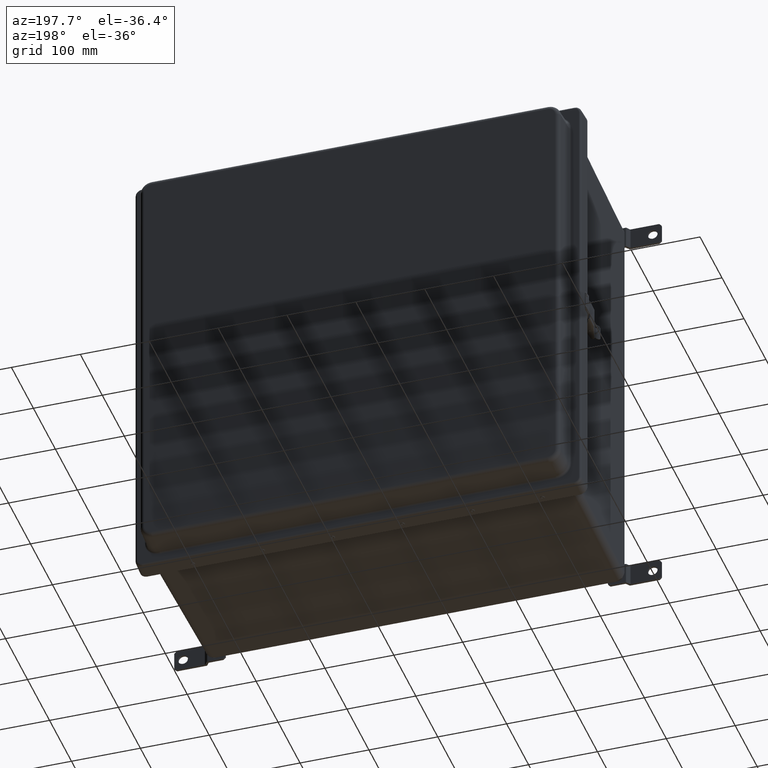
[diagram: clean part render]
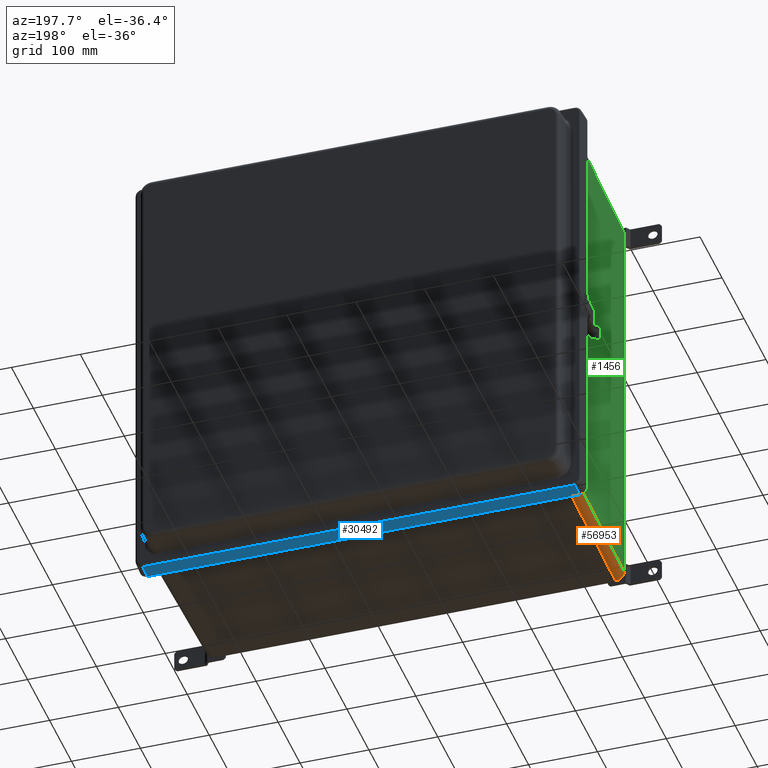
[diagram: same view with three faces highlighted in distinct colors, each labeled with its STEP entity id]
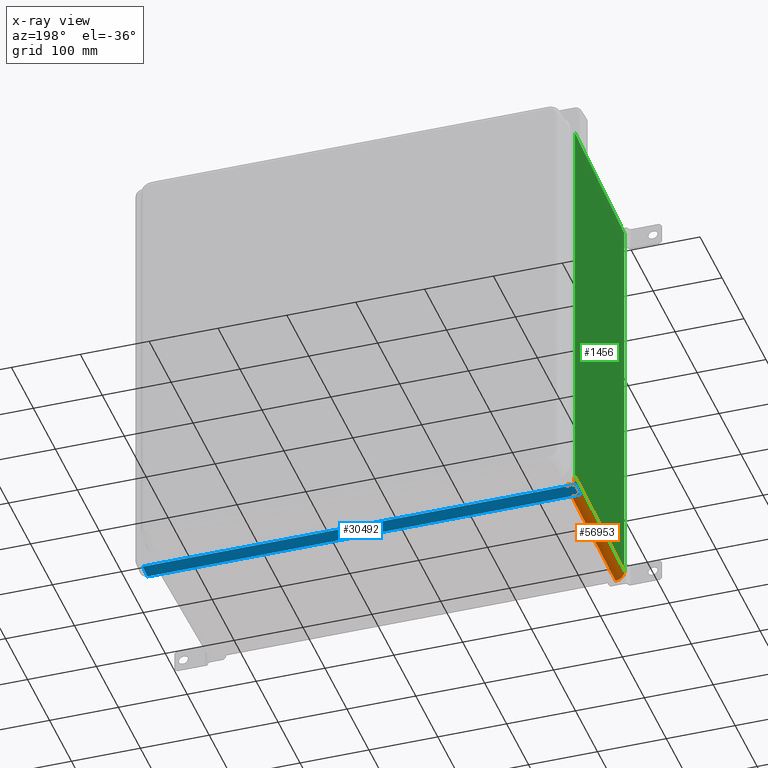
[diagram: x-ray of the same camera — body ghosted, the three highlighted faces saturated]
A machine part, auxiliary view with three faces highlighted in distinct colors.
The next image is the same camera in x-ray (body ghosted, the three faces saturated) — at least one of them is partly hidden behind the body in this view.
Their STEP definitions:

[orange] entity #56953 — the highlighted cylindrical surface (edge-blend (fillet) strip) has radius 12.7 mm, axis along (-0.0174, 0.9997, -0.0174).
#936 =( BOUNDED_CURVE ( )  B_SPLINE_CURVE ( 3, ( #1952, #31396, #11822, #46240 ),
 .UNSPECIFIED., .F., .F. ) 
 B_SPLINE_CURVE_WITH_KNOTS ( ( 4, 4 ),
 ( 5.497939437029718800, 6.283185307179586200 ),
 .UNSPECIFIED. ) 
 CURVE ( )  GEOMETRIC_REPRESENTATION_ITEM ( )  RATIONAL_B_SPLINE_CURVE ( ( 1.000000000000000000, 0.9492724465894296600, 0.9492724465894296600, 1.000000000000000000 ) ) 
 REPRESENTATION_ITEM ( '' )  );
#1618 = ORIENTED_EDGE ( 'NONE', *, *, #54825, .T. ) ;
#1690 = EDGE_CURVE ( 'NONE', #60708, #53063, #28577, .T. ) ;
#1763 = CARTESIAN_POINT ( 'NONE',  ( -11.90611046317963700, -9.881169417980761000, -11.71610649043089200 ) ) ;
#1952 = CARTESIAN_POINT ( 'NONE',  ( -11.45763122803377600, -9.879363101609323300, -11.95755507561197100 ) ) ;
#2372 = CARTESIAN_POINT ( 'NONE',  ( -11.83085558689586700, -0.5871381827173612900, -12.07306316352641700 ) ) ;
#2384 = ORIENTED_EDGE ( 'NONE', *, *, #3844, .F. ) ;
#3844 = EDGE_CURVE ( 'NONE', #9232, #44949, #45667, .T. ) ;
#4033 = CARTESIAN_POINT ( 'NONE',  ( -12.08469487838327100, -0.4943172800457236700, -11.80941849839688600 ) ) ;
#4247 = CARTESIAN_POINT ( 'NONE',  ( -12.00745191115025900, -0.7136056890291355700, -11.93089852931318300 ) ) ;
#4344 = CARTESIAN_POINT ( 'NONE',  ( -12.13015222368495000, 0.008720889070032987100, -11.63022837610675400 ) ) ;
#4996 = CARTESIAN_POINT ( 'NONE',  ( -12.12134862575777200, -0.4956368983906792000, -11.62142477817957500 ) ) ;
#6424 = CARTESIAN_POINT ( 'NONE',  ( -11.45763122803377600, -9.879363101609323300, -11.95755507561197100 ) ) ;
#7307 = CARTESIAN_POINT ( 'NONE',  ( -11.81904622595997100, -0.5481778721213216300, -12.07933790350403800 ) ) ;
#8953 = CARTESIAN_POINT ( 'NONE',  ( -12.07935121875329500, -0.5480729291304276000, -11.81902133962429800 ) ) ;
#9179 = CARTESIAN_POINT ( 'NONE',  ( -11.98081675446124100, -0.7227210485881894200, -11.96112282100824100 ) ) ;
#9232 = VERTEX_POINT ( 'NONE', #16410 ) ;
#9419 = ORIENTED_EDGE ( 'NONE', *, *, #14010, .T. ) ;
#9764 = CARTESIAN_POINT ( 'NONE',  ( -11.97096978773470800, -0.7227210485881902000, -11.97096978773477000 ) ) ;
#11822 = CARTESIAN_POINT ( 'NONE',  ( -11.71610649043089200, -9.881169417980761000, -11.90611046317963700 ) ) ;
#11877 =( BOUNDED_CURVE ( )  B_SPLINE_CURVE ( 3, ( #4996, #19605, #44347, #14875 ),
 .UNSPECIFIED., .F., .T. ) 
 B_SPLINE_CURVE_WITH_KNOTS ( ( 4, 4 ),
 ( 5.497939437029717900, 5.883314233597677600 ),
 .UNSPECIFIED. ) 
 CURVE ( )  GEOMETRIC_REPRESENTATION_ITEM ( )  RATIONAL_B_SPLINE_CURVE ( ( 1.000000000000000000, 0.9876621003926475700, 0.9876621003926475700, 1.000000000000000000 ) ) 
 REPRESENTATION_ITEM ( '' )  );
#12049 = CARTESIAN_POINT ( 'NONE',  ( -11.93066168542281800, -0.7135099898239115600, -12.00765162186481800 ) ) ;
#12253 = CARTESIAN_POINT ( 'NONE',  ( -11.81109350364470400, -0.5078715765017595100, -12.08368273621312900 ) ) ;
#12397 = AXIS2_PLACEMENT_3D ( 'NONE', #42828, #47777, #28224 ) ;
#13914 = CARTESIAN_POINT ( 'NONE',  ( -12.07306191587222300, -0.5871477096917526700, -11.83085795600943300 ) ) ;
#14010 = EDGE_CURVE ( 'NONE', #56091, #44949, #17138, .T. ) ;
#14875 = CARTESIAN_POINT ( 'NONE',  ( -12.08469487838327100, -0.4943172800457236700, -11.80941849839688600 ) ) ;
#16410 = CARTESIAN_POINT ( 'NONE',  ( -12.12134862575777200, -0.4956368983906792000, -11.62142477817957500 ) ) ;
#16582 = CARTESIAN_POINT ( 'NONE',  ( -11.95753461765810700, -9.880535137001352600, -11.59198432717436600 ) ) ;
#16986 = CARTESIAN_POINT ( 'NONE',  ( -11.90158792877466000, -0.6946630567834839500, -12.02981124285595800 ) ) ;
#17138 =( BOUNDED_CURVE ( )  B_SPLINE_CURVE ( 3, ( #60774, #1763, #16582, #31412 ),
 .UNSPECIFIED., .F., .F. ) 
 B_SPLINE_CURVE_WITH_KNOTS ( ( 4, 4 ),
 ( 0.0000000000000000000, 0.7852458701498674600 ),
 .UNSPECIFIED. ) 
 CURVE ( )  GEOMETRIC_REPRESENTATION_ITEM ( )  RATIONAL_B_SPLINE_CURVE ( ( 1.000000000000000000, 0.9492724465894296600, 0.9492724465894296600, 1.000000000000000000 ) ) 
 REPRESENTATION_ITEM ( '' )  );
#18831 = CARTESIAN_POINT ( 'NONE',  ( -12.06425304610514200, -0.6241424124028013300, -11.84696890504616500 ) ) ;
#19605 = CARTESIAN_POINT ( 'NONE',  ( -12.12135846694288000, -0.4950730972733387600, -11.68607427286474200 ) ) ;
#20744 = CARTESIAN_POINT ( 'NONE',  ( -11.95755507561197100, -9.879363101609323300, -11.45763122803377600 ) ) ;
#21923 = CARTESIAN_POINT ( 'NONE',  ( -11.87522543671235600, -0.6678339771598966700, -12.04747544983802100 ) ) ;
#22033 = VECTOR ( 'NONE', #30234, 39.37007874015748900 ) ;
#23114 = EDGE_CURVE ( 'NONE', #35316, #24390, #44679, .T. ) ;
#23291 = EDGE_CURVE ( 'NONE', #29156, #24390, #48193, .T. ) ;
#23538 = CARTESIAN_POINT ( 'NONE',  ( -11.74952165368535300, -0.4946277295899211300, -12.10898792464240300 ) ) ;
#23774 = CARTESIAN_POINT ( 'NONE',  ( -12.05221526881354800, -0.6577861726424736300, -11.86754455176378900 ) ) ;
#23800 = EDGE_LOOP ( 'NONE', ( #61202, #42944, #53856, #1618, #9419, #2384, #41073, #41539 ) ) ;
#24390 = VERTEX_POINT ( 'NONE', #54923 ) ;
#26551 = CARTESIAN_POINT ( 'NONE',  ( -11.80941849839678600, -0.4943172800457243900, -12.08469487838331200 ) ) ;
#26642 = CARTESIAN_POINT ( 'NONE',  ( -11.97096978773470800, -0.7227210485881902000, -11.97096978773477000 ) ) ;
#26854 = CARTESIAN_POINT ( 'NONE',  ( -11.85335241528750800, -0.6358636582741689100, -12.06064455711823100 ) ) ;
#28224 = DIRECTION ( 'NONE',  ( 0.0000000000000000000, 0.01745240643728358500, 0.9998476951563912700 ) ) ;
#28303 = CARTESIAN_POINT ( 'NONE',  ( -11.80941849839678600, -0.4943172800457243900, -12.08469487838331200 ) ) ;
#28519 = CARTESIAN_POINT ( 'NONE',  ( -11.68607427286470300, -0.4950730972733389800, -12.12135846694288000 ) ) ;
#28577 = B_SPLINE_CURVE_WITH_KNOTS ( 'NONE', 3,
 ( #4033, #33475, #62850, #8953, #43350, #13914, #48306, #18831, #53213, #23774, #58101, #28748, #63060, #33695, #4247, #38609, #9179, #43574 ),
 .UNSPECIFIED., .F., .F.,
 ( 4, 2, 2, 2, 2, 2, 2, 2, 4 ),
 ( 0.002041699445812603100, 0.003083391825584868700, 0.004125084205357134300, 0.005166776585129399500, 0.006208468964901661100, 0.007250161344673921100, 0.008291853724446181900, 0.009333546104218444500, 0.01037523848399070400 ),
 .UNSPECIFIED. ) ;
#28748 = CARTESIAN_POINT ( 'NONE',  ( -12.03607829101612700, -0.6866203354802366000, -11.89255120586995700 ) ) ;
#29156 = VERTEX_POINT ( 'NONE', #6424 ) ;
#30234 = DIRECTION ( 'NONE',  ( -0.01744974916068272100, 0.9996954598818874600, -0.01744974916068272100 ) ) ;
#30235 = EDGE_CURVE ( 'NONE', #53063, #35316, #36716, .T. ) ;
#31396 = CARTESIAN_POINT ( 'NONE',  ( -11.59198432717436600, -9.880535137001352600, -11.95753461765810500 ) ) ;
#31412 = CARTESIAN_POINT ( 'NONE',  ( -11.95755507561197100, -9.879363101609323300, -11.45763122803377600 ) ) ;
#31811 = CARTESIAN_POINT ( 'NONE',  ( -11.83569300200133000, -0.5997014925401041900, -12.07047655147165200 ) ) ;
#33475 = CARTESIAN_POINT ( 'NONE',  ( -12.08368425192733900, -0.5078512785229913900, -11.81109099527256100 ) ) ;
#33695 = CARTESIAN_POINT ( 'NONE',  ( -12.01552852566812000, -0.7081769754833586700, -11.92073813980171200 ) ) ;
#35316 = VERTEX_POINT ( 'NONE', #26551 ) ;
#36716 = B_SPLINE_CURVE_WITH_KNOTS ( 'NONE', 3,
 ( #26642, #41276, #41484, #12049, #46441, #16986, #51363, #21923, #56247, #26854, #61172, #31811, #2372, #36758, #7307, #41698, #12253, #46659 ),
 .UNSPECIFIED., .F., .F.,
 ( 4, 2, 2, 2, 2, 2, 2, 2, 4 ),
 ( 0.0000000000000000000, 0.001052571105082931500, 0.002105142210165863000, 0.003157713315248794400, 0.004210284420331725900, 0.005262855525414657400, 0.006315426630497588900, 0.007367997735580520400, 0.008420568840663451800 ),
 .UNSPECIFIED. ) ;
#36758 = CARTESIAN_POINT ( 'NONE',  ( -11.82253500422406100, -0.5613940291629184700, -12.07749299873189800 ) ) ;
#38609 = CARTESIAN_POINT ( 'NONE',  ( -11.99017456563215800, -0.7208216711914087200, -11.95099362256393100 ) ) ;
#38707 = DIRECTION ( 'NONE',  ( 0.01744974916068272100, -0.9996954598818874600, 0.01744974916068271800 ) ) ;
#40600 = CYLINDRICAL_SURFACE ( 'NONE', #12397, 0.4999999999999988900 ) ;
#41073 = ORIENTED_EDGE ( 'NONE', *, *, #59885, .T. ) ;
#41276 = CARTESIAN_POINT ( 'NONE',  ( -11.96110931606209200, -0.7227210485881916400, -11.98083025940737800 ) ) ;
#41484 = CARTESIAN_POINT ( 'NONE',  ( -11.95104795292146200, -0.7208517363652213700, -11.99013174131133600 ) ) ;
#41539 = ORIENTED_EDGE ( 'NONE', *, *, #1690, .T. ) ;
#41698 = CARTESIAN_POINT ( 'NONE',  ( -11.81331568931992800, -0.5213600045165890400, -12.08243841063246800 ) ) ;
#42828 = CARTESIAN_POINT ( 'NONE',  ( -11.63022837610675400, 0.01744709228867476900, -11.63022837610675400 ) ) ;
#42944 = ORIENTED_EDGE ( 'NONE', *, *, #23114, .T. ) ;
#43350 = CARTESIAN_POINT ( 'NONE',  ( -12.07750027384208200, -0.5613494703082286800, -11.82252131367351400 ) ) ;
#43574 = CARTESIAN_POINT ( 'NONE',  ( -11.97096978773470800, -0.7227210485881902000, -11.97096978773477000 ) ) ;
#44102 = VECTOR ( 'NONE', #38707, 39.37007874015748900 ) ;
#44347 = CARTESIAN_POINT ( 'NONE',  ( -12.10898792464238800, -0.4946277295899206300, -11.74952165368542500 ) ) ;
#44679 =( BOUNDED_CURVE ( )  B_SPLINE_CURVE ( 3, ( #28303, #23538, #28519, #62822 ),
 .UNSPECIFIED., .F., .T. ) 
 B_SPLINE_CURVE_WITH_KNOTS ( ( 4, 4 ),
 ( 0.3998710735821200400, 0.7852458701498680200 ),
 .UNSPECIFIED. ) 
 CURVE ( )  GEOMETRIC_REPRESENTATION_ITEM ( )  RATIONAL_B_SPLINE_CURVE ( ( 1.000000000000000000, 0.9876621003926611100, 0.9876621003926611100, 1.000000000000000000 ) ) 
 REPRESENTATION_ITEM ( '' )  );
#44949 = VERTEX_POINT ( 'NONE', #20744 ) ;
#45667 = LINE ( 'NONE', #4344, #44102 ) ;
#46240 = CARTESIAN_POINT ( 'NONE',  ( -11.81110847680526300, -9.881169417980761000, -11.81110847680526300 ) ) ;
#46441 = CARTESIAN_POINT ( 'NONE',  ( -11.92075929887756100, -0.7081931504239353800, -12.01551309747763200 ) ) ;
#46659 = CARTESIAN_POINT ( 'NONE',  ( -11.80941849839678600, -0.4943172800457243900, -12.08469487838331200 ) ) ;
#47777 = DIRECTION ( 'NONE',  ( -0.01744974916068272100, 0.9996954598818874600, -0.01744974916068272100 ) ) ;
#48193 = LINE ( 'NONE', #49970, #22033 ) ;
#48306 = CARTESIAN_POINT ( 'NONE',  ( -12.07047020955874700, -0.5997326393382816900, -11.83570489941300100 ) ) ;
#49970 = CARTESIAN_POINT ( 'NONE',  ( -11.63022837610675400, 0.008720889070032987100, -12.13015222368495000 ) ) ;
#51363 = CARTESIAN_POINT ( 'NONE',  ( -11.89222900930345400, -0.6863048407642052800, -12.03629647734165400 ) ) ;
#53063 = VERTEX_POINT ( 'NONE', #9764 ) ;
#53213 = CARTESIAN_POINT ( 'NONE',  ( -12.06063683009748300, -0.6358928727027481900, -11.85336664899385200 ) ) ;
#53856 = ORIENTED_EDGE ( 'NONE', *, *, #23291, .F. ) ;
#54825 = EDGE_CURVE ( 'NONE', #29156, #56091, #936, .T. ) ;
#54923 = CARTESIAN_POINT ( 'NONE',  ( -11.62142477817957500, -0.4956368983906790900, -12.12134862575777200 ) ) ;
#55152 = FACE_OUTER_BOUND ( 'NONE', #23800, .T. ) ;
#56091 = VERTEX_POINT ( 'NONE', #57962 ) ;
#56247 = CARTESIAN_POINT ( 'NONE',  ( -11.86747583558912000, -0.6576872547765839600, -12.05225680909958400 ) ) ;
#56953 = ADVANCED_FACE ( 'NONE', ( #55152 ), #40600, .T. ) ;
#57962 = CARTESIAN_POINT ( 'NONE',  ( -11.81110847680526300, -9.881169417980761000, -11.81110847680526300 ) ) ;
#58101 = CARTESIAN_POINT ( 'NONE',  ( -12.04736871511418900, -0.6680540668985840400, -11.87539718092294900 ) ) ;
#59589 = CARTESIAN_POINT ( 'NONE',  ( -12.08469487838327100, -0.4943172800457236700, -11.80941849839688600 ) ) ;
#59885 = EDGE_CURVE ( 'NONE', #9232, #60708, #11877, .T. ) ;
#60708 = VERTEX_POINT ( 'NONE', #59589 ) ;
#60774 = CARTESIAN_POINT ( 'NONE',  ( -11.81110847680526300, -9.881169417980761000, -11.81110847680526300 ) ) ;
#61172 = CARTESIAN_POINT ( 'NONE',  ( -11.84693754086075800, -0.6240797881401662900, -12.06427058155009600 ) ) ;
#61202 = ORIENTED_EDGE ( 'NONE', *, *, #30235, .T. ) ;
#62822 = CARTESIAN_POINT ( 'NONE',  ( -11.62142477817957500, -0.4956368983906790900, -12.12134862575777200 ) ) ;
#62850 = CARTESIAN_POINT ( 'NONE',  ( -12.08244243374363300, -0.5213149216738176600, -11.81330853144812200 ) ) ;
#63060 = CARTESIAN_POINT ( 'NONE',  ( -12.02978006129561600, -0.6946941371312948000, -11.90163020990597800 ) ) ;

[blue] entity #30492 — the highlighted planar face has unit normal (0, 0.0523, -0.9986).
#3636 = LINE ( 'NONE', #57506, #25151 ) ;
#5475 = AXIS2_PLACEMENT_3D ( 'NONE', #58334, #48763, #19305 ) ;
#6821 = CARTESIAN_POINT ( 'NONE',  ( 12.35700000000000300, -0.8815419945303680800, -12.74780034172192700 ) ) ;
#7117 = EDGE_LOOP ( 'NONE', ( #55043, #7928, #44326, #50440 ) ) ;
#7928 = ORIENTED_EDGE ( 'NONE', *, *, #47663, .T. ) ;
#8952 = VERTEX_POINT ( 'NONE', #13859 ) ;
#10059 = CARTESIAN_POINT ( 'NONE',  ( -12.35700000000000800, 0.0000000000000000000, -12.79400000000000800 ) ) ;
#12861 = VERTEX_POINT ( 'NONE', #28130 ) ;
#13859 = CARTESIAN_POINT ( 'NONE',  ( 12.35700000000000300, 0.0000000000000000000, -12.79400000000000800 ) ) ;
#19066 = EDGE_CURVE ( 'NONE', #8952, #12861, #26536, .T. ) ;
#19305 = DIRECTION ( 'NONE',  ( 0.0000000000000000000, 0.9986295347545738300, -0.05233595624294400800 ) ) ;
#22160 = VECTOR ( 'NONE', #24857, 39.37007874015748100 ) ;
#23168 = DIRECTION ( 'NONE',  ( -5.234741494143242700E-016, 0.9986295347545738300, -0.05233595624294402200 ) ) ;
#24857 = DIRECTION ( 'NONE',  ( 0.0000000000000000000, 0.9986295347545738300, -0.05233595624294400800 ) ) ;
#25151 = VECTOR ( 'NONE', #23168, 39.37007874015748100 ) ;
#26536 = LINE ( 'NONE', #32601, #41179 ) ;
#28130 = CARTESIAN_POINT ( 'NONE',  ( -12.35700000000000800, 0.0000000000000000000, -12.79400000000000800 ) ) ;
#29094 = DIRECTION ( 'NONE',  ( -1.000000000000000000, 0.0000000000000000000, 0.0000000000000000000 ) ) ;
#30492 = ADVANCED_FACE ( 'NONE', ( #59734 ), #43817, .T. ) ;
#32601 = CARTESIAN_POINT ( 'NONE',  ( -12.35700000000000800, 0.0000000000000000000, -12.79400000000000800 ) ) ;
#37916 = LINE ( 'NONE', #58438, #60937 ) ;
#41179 = VECTOR ( 'NONE', #47445, 39.37007874015748100 ) ;
#43817 = PLANE ( 'NONE',  #5475 ) ;
#44326 = ORIENTED_EDGE ( 'NONE', *, *, #55114, .T. ) ;
#47445 = DIRECTION ( 'NONE',  ( -1.000000000000000000, 0.0000000000000000000, 0.0000000000000000000 ) ) ;
#47663 = EDGE_CURVE ( 'NONE', #61318, #53858, #37916, .T. ) ;
#48763 = DIRECTION ( 'NONE',  ( 0.0000000000000000000, -0.05233595624294401500, -0.9986295347545739400 ) ) ;
#49888 = LINE ( 'NONE', #10059, #22160 ) ;
#50440 = ORIENTED_EDGE ( 'NONE', *, *, #19066, .F. ) ;
#51990 = CARTESIAN_POINT ( 'NONE',  ( -12.35700000000000800, -0.8815419945303675200, -12.74780034172192700 ) ) ;
#53858 = VERTEX_POINT ( 'NONE', #51990 ) ;
#55043 = ORIENTED_EDGE ( 'NONE', *, *, #60172, .F. ) ;
#55114 = EDGE_CURVE ( 'NONE', #53858, #12861, #49888, .T. ) ;
#57506 = CARTESIAN_POINT ( 'NONE',  ( 12.35700000000000300, 0.0000000000000000000, -12.79400000000000800 ) ) ;
#58334 = CARTESIAN_POINT ( 'NONE',  ( -12.35700000000000800, 0.0000000000000000000, -12.79400000000000800 ) ) ;
#58438 = CARTESIAN_POINT ( 'NONE',  ( -12.35700000000000800, -0.8815419945303680800, -12.74780034172192700 ) ) ;
#59734 = FACE_OUTER_BOUND ( 'NONE', #7117, .T. ) ;
#60172 = EDGE_CURVE ( 'NONE', #61318, #8952, #3636, .T. ) ;
#60937 = VECTOR ( 'NONE', #29094, 39.37007874015748100 ) ;
#61318 = VERTEX_POINT ( 'NONE', #6821 ) ;

[green] entity #1456 — the highlighted planar face has unit normal (-0.9998, -0.0175, 0).
#1067 = VERTEX_POINT ( 'NONE', #34562 ) ;
#1456 = ADVANCED_FACE ( 'NONE', ( #63351 ), #47389, .T. ) ;
#3844 = EDGE_CURVE ( 'NONE', #9232, #44949, #45667, .T. ) ;
#4344 = CARTESIAN_POINT ( 'NONE',  ( -12.13015222368495000, 0.008720889070032987100, -11.63022837610675400 ) ) ;
#4611 = VERTEX_POINT ( 'NONE', #51279 ) ;
#9232 = VERTEX_POINT ( 'NONE', #16410 ) ;
#10517 = EDGE_CURVE ( 'NONE', #1067, #9232, #48526, .T. ) ;
#12246 = EDGE_LOOP ( 'NONE', ( #46135, #61642, #25393, #34422 ) ) ;
#16410 = CARTESIAN_POINT ( 'NONE',  ( -12.12134862575777200, -0.4956368983906792000, -11.62142477817957500 ) ) ;
#19709 = CARTESIAN_POINT ( 'NONE',  ( -11.95755507561197100, -9.879363101609319700, 11.45334362002359500 ) ) ;
#20744 = CARTESIAN_POINT ( 'NONE',  ( -11.95755507561197100, -9.879363101609323300, -11.45763122803377600 ) ) ;
#21523 = VECTOR ( 'NONE', #30884, 39.37007874015748900 ) ;
#23071 = DIRECTION ( 'NONE',  ( -0.9998476951563912700, -0.01745240643728355000, 0.0000000000000000000 ) ) ;
#25130 = AXIS2_PLACEMENT_3D ( 'NONE', #52509, #23071, #57413 ) ;
#25393 = ORIENTED_EDGE ( 'NONE', *, *, #3844, .T. ) ;
#27037 = VECTOR ( 'NONE', #54069, 39.37007874015748100 ) ;
#27150 = EDGE_CURVE ( 'NONE', #44949, #4611, #53162, .T. ) ;
#30225 = CARTESIAN_POINT ( 'NONE',  ( -12.12134862575776900, -0.4956368983906792000, -12.12999999999999900 ) ) ;
#30884 = DIRECTION ( 'NONE',  ( -0.01744974916068272100, 0.9996954598818874600, 0.01744974916068271800 ) ) ;
#33044 = LINE ( 'NONE', #60235, #21523 ) ;
#33923 = VECTOR ( 'NONE', #59563, 39.37007874015748100 ) ;
#34422 = ORIENTED_EDGE ( 'NONE', *, *, #27150, .T. ) ;
#34562 = CARTESIAN_POINT ( 'NONE',  ( -12.12134862575776900, -0.4956368983906792000, 11.62142477817956600 ) ) ;
#35306 = EDGE_CURVE ( 'NONE', #4611, #1067, #33044, .T. ) ;
#38707 = DIRECTION ( 'NONE',  ( 0.01744974916068272100, -0.9996954598818874600, 0.01744974916068271800 ) ) ;
#44102 = VECTOR ( 'NONE', #38707, 39.37007874015748900 ) ;
#44949 = VERTEX_POINT ( 'NONE', #20744 ) ;
#45667 = LINE ( 'NONE', #4344, #44102 ) ;
#46135 = ORIENTED_EDGE ( 'NONE', *, *, #35306, .T. ) ;
#47389 = PLANE ( 'NONE',  #25130 ) ;
#48526 = LINE ( 'NONE', #30225, #33923 ) ;
#51279 = CARTESIAN_POINT ( 'NONE',  ( -11.95755507561197100, -9.879363101609319700, 11.45763122803376900 ) ) ;
#52509 = CARTESIAN_POINT ( 'NONE',  ( -12.12999999999999900, 0.0000000000000000000, -12.12999999999999900 ) ) ;
#53162 = LINE ( 'NONE', #19709, #27037 ) ;
#54069 = DIRECTION ( 'NONE',  ( 0.0000000000000000000, 0.0000000000000000000, 1.000000000000000000 ) ) ;
#57413 = DIRECTION ( 'NONE',  ( 0.01745240643728355000, -0.9998476951563912700, 0.0000000000000000000 ) ) ;
#59563 = DIRECTION ( 'NONE',  ( -0.0000000000000000000, -0.0000000000000000000, -1.000000000000000000 ) ) ;
#60235 = CARTESIAN_POINT ( 'NONE',  ( -12.12276520541255000, -0.4144811043213851300, 11.62284135783434600 ) ) ;
#61642 = ORIENTED_EDGE ( 'NONE', *, *, #10517, .T. ) ;
#63351 = FACE_OUTER_BOUND ( 'NONE', #12246, .T. ) ;